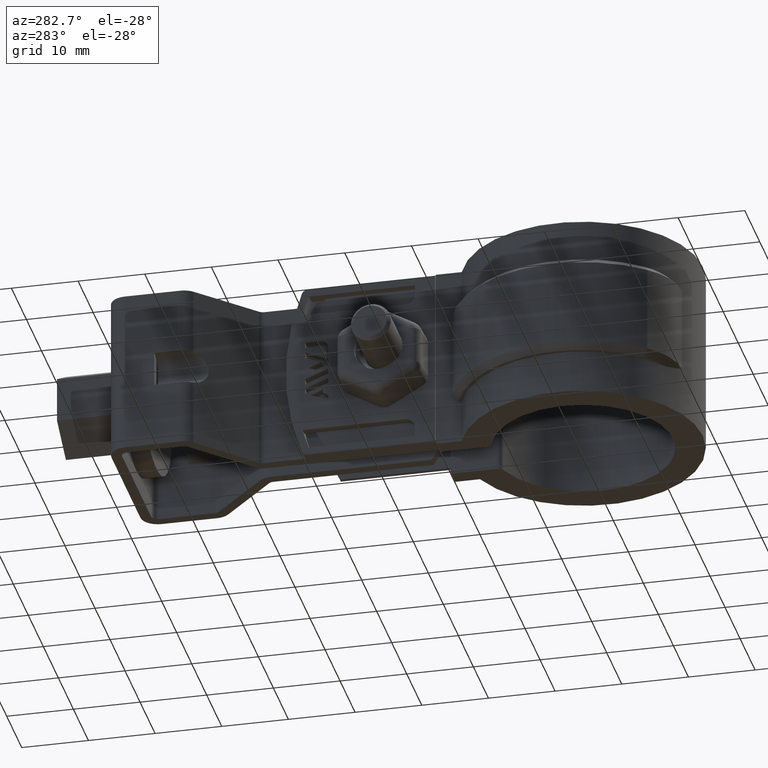
[diagram: clean part render]
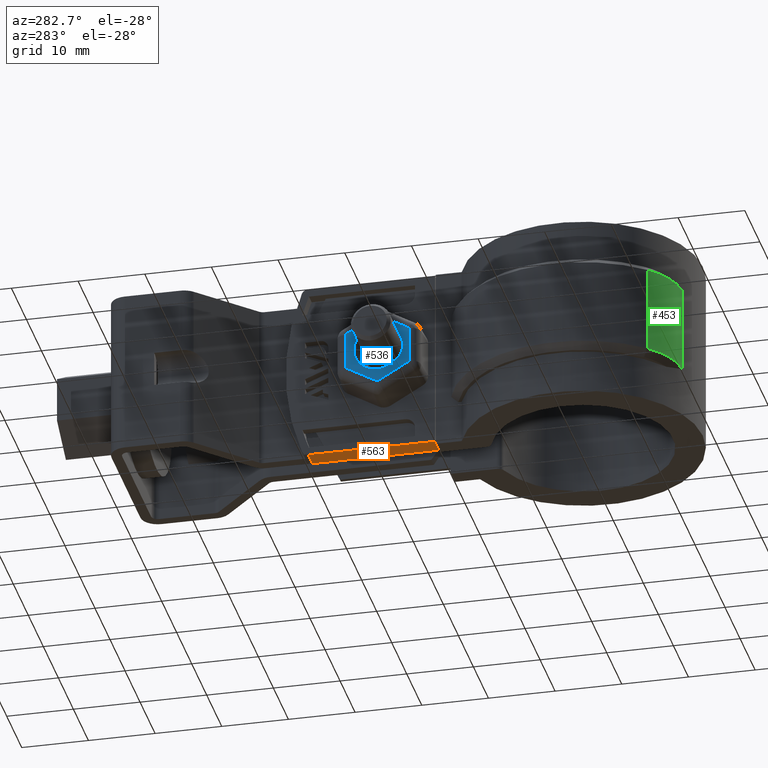
[diagram: same view with three faces highlighted in distinct colors, each labeled with its STEP entity id]
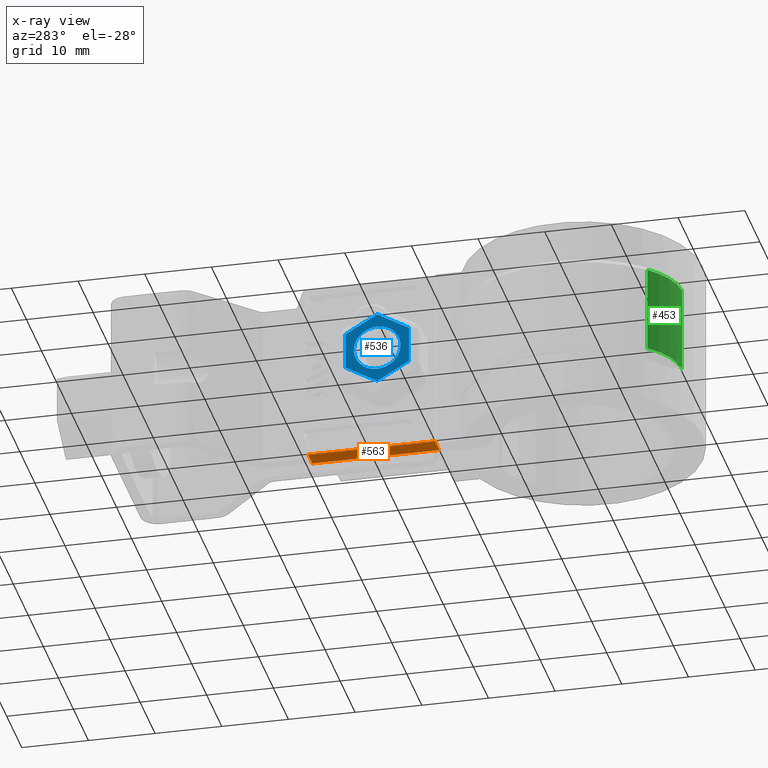
[diagram: x-ray of the same camera — body ghosted, the three highlighted faces saturated]
A machine part, auxiliary view with three faces highlighted in distinct colors.
The next image is the same camera in x-ray (body ghosted, the three faces saturated) — at least one of them is partly hidden behind the body in this view.
Their STEP definitions:

[orange] entity #563 — the highlighted planar face has unit normal (-0, -0, 1).
#563 = ADVANCED_FACE( '', ( #1128 ), #1129, .F. );
#1128 = FACE_OUTER_BOUND( '', #2209, .T. );
#1129 = PLANE( '', #2210 );
#2209 = EDGE_LOOP( '', ( #5091, #5092, #5093, #5094 ) );
#2210 = AXIS2_PLACEMENT_3D( '', #5095, #5096, #5097 );
#5091 = ORIENTED_EDGE( '', *, *, #6584, .F. );
#5092 = ORIENTED_EDGE( '', *, *, #6706, .T. );
#5093 = ORIENTED_EDGE( '', *, *, #6677, .F. );
#5094 = ORIENTED_EDGE( '', *, *, #6707, .F. );
#5095 = CARTESIAN_POINT( '', ( -6.30000000000003, 23.8219465658195, -26.2000000000001 ) );
#5096 = DIRECTION( '', ( -6.23565794846650E-020, -1.27307474615306E-016, 1.00000000000000 ) );
#5097 = DIRECTION( '', ( 5.53681883903847E-017, 1.00000000000000, 1.27307474615306E-016 ) );
#6584 = EDGE_CURVE( '', #7940, #7942, #7943, .T. );
#6677 = EDGE_CURVE( '', #8117, #8119, #8120, .T. );
#6706 = EDGE_CURVE( '', #7940, #8119, #8159, .F. );
#6707 = EDGE_CURVE( '', #7942, #8117, #8160, .T. );
#7940 = VERTEX_POINT( '', #11216 );
#7942 = VERTEX_POINT( '', #11218 );
#7943 = LINE( '', #11219, #11220 );
#8117 = VERTEX_POINT( '', #11470 );
#8119 = VERTEX_POINT( '', #11473 );
#8120 = LINE( '', #11474, #11475 );
#8159 = LINE( '', #11539, #11540 );
#8160 = LINE( '', #11541, #11542 );
#11216 = CARTESIAN_POINT( '', ( -6.30000000000003, 39.8654028015101, -26.2000000000001 ) );
#11218 = CARTESIAN_POINT( '', ( -6.30000000000003, 20.8219465658195, -26.2000000000001 ) );
#11219 = CARTESIAN_POINT( '', ( -6.30000000000003, 23.8219465658195, -26.2000000000001 ) );
#11220 = VECTOR( '', #12757, 1000.00000000000 );
#11470 = CARTESIAN_POINT( '', ( -3.50000000000003, 20.8219465658195, -26.2000000000001 ) );
#11473 = CARTESIAN_POINT( '', ( -3.50000000000003, 39.8654028015101, -26.2000000000001 ) );
#11474 = CARTESIAN_POINT( '', ( -3.50000000000003, 20.8219465658195, -26.2000000000001 ) );
#11475 = VECTOR( '', #12880, 1000.00000000000 );
#11539 = CARTESIAN_POINT( '', ( -3.50000000000003, 39.8654028015101, -26.2000000000001 ) );
#11540 = VECTOR( '', #12915, 1000.00000000000 );
#11541 = CARTESIAN_POINT( '', ( -6.30000000000003, 20.8219465658195, -26.2000000000001 ) );
#11542 = VECTOR( '', #12916, 1000.00000000000 );
#12757 = DIRECTION( '', ( -5.56970201441962E-017, -1.00000000000000, -1.27307474615306E-016 ) );
#12880 = DIRECTION( '', ( 5.56970201441962E-017, 1.00000000000000, 5.55111512312578E-017 ) );
#12915 = DIRECTION( '', ( -1.00000000000000, -1.77553823037274E-016, 1.31611162143792E-020 ) );
#12916 = DIRECTION( '', ( 1.00000000000000, -5.53681883903847E-017, 6.23565794846579E-020 ) );

[blue] entity #536 — the highlighted planar face has unit normal (-1, -0, 0).
#536 = ADVANCED_FACE( '', ( #1063, #1064 ), #1065, .T. );
#1063 = FACE_OUTER_BOUND( '', #2144, .T. );
#1064 = FACE_BOUND( '', #2145, .T. );
#1065 = PLANE( '', #2146 );
#2144 = EDGE_LOOP( '', ( #4786, #4787, #4788, #4789, #4790, #4791, #4792, #4793, #4794, #4795, #4796, #4797 ) );
#2145 = EDGE_LOOP( '', ( #4798 ) );
#2146 = AXIS2_PLACEMENT_3D( '', #4799, #4800, #4801 );
#4786 = ORIENTED_EDGE( '', *, *, #6544, .T. );
#4787 = ORIENTED_EDGE( '', *, *, #6545, .T. );
#4788 = ORIENTED_EDGE( '', *, *, #6546, .T. );
#4789 = ORIENTED_EDGE( '', *, *, #6547, .T. );
#4790 = ORIENTED_EDGE( '', *, *, #6548, .T. );
#4791 = ORIENTED_EDGE( '', *, *, #6549, .T. );
#4792 = ORIENTED_EDGE( '', *, *, #6550, .T. );
#4793 = ORIENTED_EDGE( '', *, *, #6551, .T. );
#4794 = ORIENTED_EDGE( '', *, *, #6552, .T. );
#4795 = ORIENTED_EDGE( '', *, *, #6553, .T. );
#4796 = ORIENTED_EDGE( '', *, *, #6554, .T. );
#4797 = ORIENTED_EDGE( '', *, *, #6555, .T. );
#4798 = ORIENTED_EDGE( '', *, *, #6556, .T. );
#4799 = CARTESIAN_POINT( '', ( -11.5000000000000, 33.0219465658194, -15.2135462651913 ) );
#4800 = DIRECTION( '', ( -1.00000000000000, -5.21622357984566E-016, 4.64857589325129E-017 ) );
#4801 = DIRECTION( '', ( -4.28495333730318E-016, 0.866025403784439, 0.499999999999999 ) );
#6544 = EDGE_CURVE( '', #7863, #7864, #7865, .T. );
#6545 = EDGE_CURVE( '', #7864, #7866, #7867, .F. );
#6546 = EDGE_CURVE( '', #7866, #7868, #7869, .T. );
#6547 = EDGE_CURVE( '', #7868, #7870, #7871, .F. );
#6548 = EDGE_CURVE( '', #7870, #7872, #7873, .T. );
#6549 = EDGE_CURVE( '', #7872, #7874, #7875, .F. );
#6550 = EDGE_CURVE( '', #7874, #7876, #7877, .T. );
#6551 = EDGE_CURVE( '', #7876, #7878, #7879, .F. );
#6552 = EDGE_CURVE( '', #7878, #7880, #7881, .T. );
#6553 = EDGE_CURVE( '', #7880, #7882, #7883, .F. );
#6554 = EDGE_CURVE( '', #7882, #7884, #7885, .T. );
#6555 = EDGE_CURVE( '', #7884, #7863, #7886, .F. );
#6556 = EDGE_CURVE( '', #7887, #7887, #7888, .F. );
#7863 = VERTEX_POINT( '', #11113 );
#7864 = VERTEX_POINT( '', #11114 );
#7865 = CIRCLE( '', #11115, 0.0765531499276742 );
#7866 = VERTEX_POINT( '', #11116 );
#7867 = LINE( '', #11117, #11118 );
#7868 = VERTEX_POINT( '', #11119 );
#7869 = CIRCLE( '', #11120, 0.0765531499276852 );
#7870 = VERTEX_POINT( '', #11121 );
#7871 = LINE( '', #11122, #11123 );
#7872 = VERTEX_POINT( '', #11124 );
#7873 = CIRCLE( '', #11125, 0.0765531499276820 );
#7874 = VERTEX_POINT( '', #11126 );
#7875 = LINE( '', #11127, #11128 );
#7876 = VERTEX_POINT( '', #11129 );
#7877 = CIRCLE( '', #11130, 0.0765531499276767 );
#7878 = VERTEX_POINT( '', #11131 );
#7879 = LINE( '', #11132, #11133 );
#7880 = VERTEX_POINT( '', #11134 );
#7881 = CIRCLE( '', #11135, 0.0765531499276752 );
#7882 = VERTEX_POINT( '', #11136 );
#7883 = LINE( '', #11137, #11138 );
#7884 = VERTEX_POINT( '', #11139 );
#7885 = CIRCLE( '', #11140, 0.0765531499276886 );
#7886 = LINE( '', #11141, #11142 );
#7887 = VERTEX_POINT( '', #11143 );
#7888 = CIRCLE( '', #11144, 3.50000000000000 );
#11113 = CARTESIAN_POINT( '', ( -11.5000000000000, 28.3602231407832, -17.9933895029597 ) );
#11114 = CARTESIAN_POINT( '', ( -11.5000000000000, 28.2836699908556, -17.9933895029597 ) );
#11115 = AXIS2_PLACEMENT_3D( '', #12689, #12690, #12691 );
#11116 = CARTESIAN_POINT( '', ( -11.5000000000000, 23.5836699908556, -15.2798432377684 ) );
#11117 = CARTESIAN_POINT( '', ( -11.5000000000000, 30.6336699908556, -19.3501626355553 ) );
#11118 = VECTOR( '', #12692, 1000.00000000000 );
#11119 = CARTESIAN_POINT( '', ( -11.5000000000000, 23.5453934158917, -15.2135462651913 ) );
#11120 = AXIS2_PLACEMENT_3D( '', #12693, #12694, #12695 );
#11121 = CARTESIAN_POINT( '', ( -11.5000000000000, 23.5453934158917, -9.78645373480884 ) );
#11122 = CARTESIAN_POINT( '', ( -11.5000000000000, 23.5453934158917, -15.2135462651913 ) );
#11123 = VECTOR( '', #12696, 1000.00000000000 );
#11124 = CARTESIAN_POINT( '', ( -11.5000000000000, 23.5836699908556, -9.72015676223174 ) );
#11125 = AXIS2_PLACEMENT_3D( '', #12697, #12698, #12699 );
#11126 = CARTESIAN_POINT( '', ( -11.5000000000000, 28.2836699908556, -7.00661049704051 ) );
#11127 = CARTESIAN_POINT( '', ( -11.5000000000000, 28.2836699908556, -7.00661049704050 ) );
#11128 = VECTOR( '', #12700, 1000.00000000000 );
#11129 = CARTESIAN_POINT( '', ( -11.5000000000000, 28.3602231407832, -7.00661049704052 ) );
#11130 = AXIS2_PLACEMENT_3D( '', #12701, #12702, #12703 );
#11131 = CARTESIAN_POINT( '', ( -11.5000000000000, 33.0602231407833, -9.72015676223175 ) );
#11132 = CARTESIAN_POINT( '', ( -11.5000000000000, 35.4102231407833, -11.0769298948274 ) );
#11133 = VECTOR( '', #12704, 1000.00000000000 );
#11134 = CARTESIAN_POINT( '', ( -11.5000000000000, 33.0984997157471, -9.78645373480883 ) );
#11135 = AXIS2_PLACEMENT_3D( '', #12705, #12706, #12707 );
#11136 = CARTESIAN_POINT( '', ( -11.5000000000000, 33.0984997157471, -15.2135462651913 ) );
#11137 = CARTESIAN_POINT( '', ( -11.5000000000000, 33.0984997157471, -15.2135462651913 ) );
#11138 = VECTOR( '', #12708, 1000.00000000000 );
#11139 = CARTESIAN_POINT( '', ( -11.5000000000000, 33.0602231407832, -15.2798432377684 ) );
#11140 = AXIS2_PLACEMENT_3D( '', #12709, #12710, #12711 );
#11141 = CARTESIAN_POINT( '', ( -11.5000000000000, 33.0602231407833, -15.2798432377684 ) );
#11142 = VECTOR( '', #12712, 1000.00000000000 );
#11143 = CARTESIAN_POINT( '', ( -11.5000000000000, 24.8219465658194, -12.5000000000001 ) );
#11144 = AXIS2_PLACEMENT_3D( '', #12713, #12714, #12715 );
#12689 = CARTESIAN_POINT( '', ( -11.5000000000000, 28.3219465658194, -17.9270925303826 ) );
#12690 = DIRECTION( '', ( -1.00000000000000, -5.21622357984566E-016, 4.64857589325129E-017 ) );
#12691 = DIRECTION( '', ( 5.21622357984566E-016, -1.00000000000000, 0.000000000000000 ) );
#12692 = DIRECTION( '', ( -4.74981092662831E-016, 0.866025403784439, -0.499999999999999 ) );
#12693 = CARTESIAN_POINT( '', ( -11.5000000000000, 23.6219465658194, -15.2135462651913 ) );
#12694 = DIRECTION( '', ( -1.00000000000000, -5.21622357984566E-016, 4.64857589325129E-017 ) );
#12695 = DIRECTION( '', ( 5.21622357984566E-016, -1.00000000000000, 0.000000000000000 ) );
#12696 = DIRECTION( '', ( -4.64857589325129E-017, 5.79473666251976E-017, -1.00000000000000 ) );
#12697 = CARTESIAN_POINT( '', ( -11.5000000000000, 23.6219465658194, -9.78645373480884 ) );
#12698 = DIRECTION( '', ( -1.00000000000000, -5.21622357984566E-016, 4.64857589325129E-017 ) );
#12699 = DIRECTION( '', ( 5.21622357984566E-016, -1.00000000000000, 0.000000000000000 ) );
#12700 = DIRECTION( '', ( 4.28495333730318E-016, -0.866025403784439, -0.500000000000000 ) );
#12701 = CARTESIAN_POINT( '', ( -11.5000000000000, 28.3219465658194, -7.07290746961760 ) );
#12702 = DIRECTION( '', ( -1.00000000000000, -5.21622357984566E-016, 4.64857589325129E-017 ) );
#12703 = DIRECTION( '', ( 5.21622357984566E-016, -1.00000000000000, 0.000000000000000 ) );
#12704 = DIRECTION( '', ( 4.74981092662831E-016, -0.866025403784439, 0.499999999999999 ) );
#12705 = CARTESIAN_POINT( '', ( -11.5000000000000, 33.0219465658194, -9.78645373480884 ) );
#12706 = DIRECTION( '', ( -1.00000000000000, -5.21622357984566E-016, 4.64857589325129E-017 ) );
#12707 = DIRECTION( '', ( 5.21622357984566E-016, -1.00000000000000, 0.000000000000000 ) );
#12708 = DIRECTION( '', ( 4.64857589325132E-017, -5.52675296918638E-016, 1.00000000000000 ) );
#12709 = CARTESIAN_POINT( '', ( -11.5000000000000, 33.0219465658194, -15.2135462651913 ) );
#12710 = DIRECTION( '', ( -1.00000000000000, -5.21622357984566E-016, 4.64857589325129E-017 ) );
#12711 = DIRECTION( '', ( 5.21622357984566E-016, -1.00000000000000, 0.000000000000000 ) );
#12712 = DIRECTION( '', ( -4.28495333730318E-016, 0.866025403784439, 0.500000000000000 ) );
#12713 = CARTESIAN_POINT( '', ( -11.5000000000000, 28.3219465658194, -12.5000000000001 ) );
#12714 = DIRECTION( '', ( -1.00000000000000, -5.21622357984566E-016, 4.64857589325129E-017 ) );
#12715 = DIRECTION( '', ( 5.21622357984566E-016, -1.00000000000000, 0.000000000000000 ) );

[green] entity #453 — the highlighted cylindrical surface (partial cylindrical patch) has radius 10.6 mm, axis along (0, 0, -1).
#453 = ADVANCED_FACE( '', ( #877 ), #878, .T. );
#877 = FACE_OUTER_BOUND( '', #1910, .T. );
#878 = CYLINDRICAL_SURFACE( '', #1911, 10.6000000000000 );
#1910 = EDGE_LOOP( '', ( #4028, #4029, #4030, #4031 ) );
#1911 = AXIS2_PLACEMENT_3D( '', #4032, #4033, #4034 );
#4028 = ORIENTED_EDGE( '', *, *, #6260, .F. );
#4029 = ORIENTED_EDGE( '', *, *, #6266, .T. );
#4030 = ORIENTED_EDGE( '', *, *, #6286, .F. );
#4031 = ORIENTED_EDGE( '', *, *, #6287, .T. );
#4032 = CARTESIAN_POINT( '', ( -6.61812783194765, -5.85300000000000, -20.0000000000000 ) );
#4033 = DIRECTION( '', ( 0.000000000000000, 0.000000000000000, -1.00000000000000 ) );
#4034 = DIRECTION( '', ( -0.262413172112169, 0.964955608876403, 0.000000000000000 ) );
#6260 = EDGE_CURVE( '', #7372, #7374, #7375, .F. );
#6266 = EDGE_CURVE( '', #7372, #7383, #7385, .F. );
#6286 = EDGE_CURVE( '', #7389, #7383, #7415, .T. );
#6287 = EDGE_CURVE( '', #7389, #7374, #7416, .T. );
#7372 = VERTEX_POINT( '', #10363 );
#7374 = VERTEX_POINT( '', #10368 );
#7375 = LINE( '', #10369, #10370 );
#7383 = VERTEX_POINT( '', #10382 );
#7385 = CIRCLE( '', #10385, 10.6000000000000 );
#7389 = VERTEX_POINT( '', #10389 );
#7415 = LINE( '', #10420, #10421 );
#7416 = CIRCLE( '', #10422, 10.6000000000000 );
#10363 = CARTESIAN_POINT( '', ( -7.17213575351333, -16.4385125158323, -6.00000000000000 ) );
#10368 = CARTESIAN_POINT( '', ( -7.17213575351333, -16.4385125158323, -19.0000000000000 ) );
#10369 = CARTESIAN_POINT( '', ( -7.17213575351333, -16.4385125158323, -12.5000000000000 ) );
#10370 = VECTOR( '', #12260, 1000.00000000000 );
#10382 = CARTESIAN_POINT( '', ( -14.5583830689193, -12.8752750424448, -5.99999999999999 ) );
#10385 = AXIS2_PLACEMENT_3D( '', #12269, #12270, #12271 );
#10389 = CARTESIAN_POINT( '', ( -14.5583830689193, -12.8752750424448, -19.0000000000000 ) );
#10420 = CARTESIAN_POINT( '', ( -14.5583830689193, -12.8752750424448, -20.0000000000000 ) );
#10421 = VECTOR( '', #12319, 1000.00000000000 );
#10422 = AXIS2_PLACEMENT_3D( '', #12320, #12321, #12322 );
#12260 = DIRECTION( '', ( 0.000000000000000, 0.000000000000000, 1.00000000000000 ) );
#12269 = CARTESIAN_POINT( '', ( -6.61812783194765, -5.85300000000000, -6.00000000000000 ) );
#12270 = DIRECTION( '', ( 0.000000000000000, 0.000000000000000, 1.00000000000000 ) );
#12271 = DIRECTION( '', ( 1.00000000000000, 0.000000000000000, 0.000000000000000 ) );
#12319 = DIRECTION( '', ( 0.000000000000000, 0.000000000000000, 1.00000000000000 ) );
#12320 = CARTESIAN_POINT( '', ( -6.61812783194765, -5.85300000000000, -19.0000000000000 ) );
#12321 = DIRECTION( '', ( 0.000000000000000, 0.000000000000000, 1.00000000000000 ) );
#12322 = DIRECTION( '', ( 1.00000000000000, 0.000000000000000, 0.000000000000000 ) );